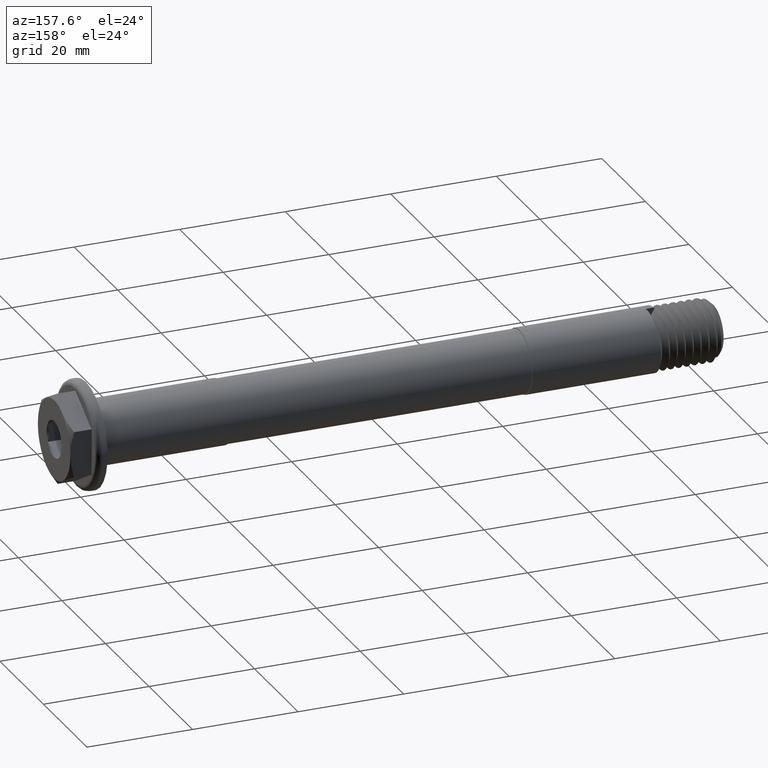
[diagram: clean part render]
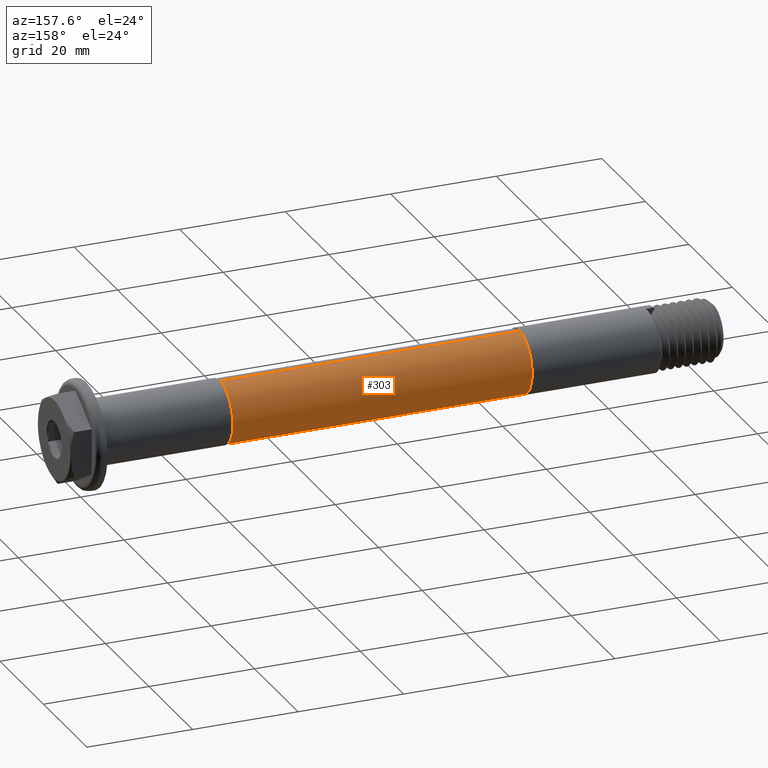
[diagram: same view with one face highlighted and labeled with its STEP entity id]
A machine part, auxiliary view. The second image highlights one B-rep face of the part: STEP entity #303.
In plain terms, the highlighted cylindrical surface (edge-blend (fillet) strip) has radius 5.842 mm, axis along (1, 0, 0).
Its self-contained STEP definition (entity closure, byte-faithful):
#22 = DIRECTION ( 'NONE',  ( 1.000000000000000000, 0.0000000000000000000, 0.0000000000000000000 ) ) ;
#46 = DIRECTION ( 'NONE',  ( 0.0000000000000000000, 0.0000000000000000000, -1.000000000000000000 ) ) ;
#75 = VECTOR ( 'NONE', #2176, 1000.000000000000000 ) ;
#205 = CARTESIAN_POINT ( 'NONE',  ( -5.540562748477140300, 7.154386600618837600E-016, 5.841999999999999600 ) ) ;
#301 = AXIS2_PLACEMENT_3D ( 'NONE', #1711, #22, #46 ) ;
#303 = ADVANCED_FACE ( 'NONE', ( #1860 ), #652, .T. ) ;
#495 = ORIENTED_EDGE ( 'NONE', *, *, #1855, .T. ) ;
#507 = ORIENTED_EDGE ( 'NONE', *, *, #1458, .T. ) ;
#544 = VERTEX_POINT ( 'NONE', #2092 ) ;
#554 = CARTESIAN_POINT ( 'NONE',  ( 36.82999999999999800, 7.154386600618837600E-016, 5.841999999999999600 ) ) ;
#555 = ORIENTED_EDGE ( 'NONE', *, *, #979, .T. ) ;
#577 = ORIENTED_EDGE ( 'NONE', *, *, #896, .F. ) ;
#629 = VERTEX_POINT ( 'NONE', #829 ) ;
#652 = CYLINDRICAL_SURFACE ( 'NONE', #301, 5.841999999999999600 ) ;
#797 = AXIS2_PLACEMENT_3D ( 'NONE', #2048, #2056, #2059 ) ;
#816 = VERTEX_POINT ( 'NONE', #1553 ) ;
#829 = CARTESIAN_POINT ( 'NONE',  ( 93.59999999999999400, 0.0000000000000000000, -5.841999999999999600 ) ) ;
#853 = CIRCLE ( 'NONE', #2221, 5.841999999999999600 ) ;
#896 = EDGE_CURVE ( 'NONE', #544, #629, #1243, .T. ) ;
#979 = EDGE_CURVE ( 'NONE', #816, #629, #1612, .T. ) ;
#1243 = LINE ( 'NONE', #1688, #1245 ) ;
#1245 = VECTOR ( 'NONE', #1714, 1000.000000000000000 ) ;
#1325 = EDGE_LOOP ( 'NONE', ( #495, #507, #555, #577 ) ) ;
#1458 = EDGE_CURVE ( 'NONE', #2080, #816, #2309, .T. ) ;
#1553 = CARTESIAN_POINT ( 'NONE',  ( 93.59999999999999400, 7.154386600618837600E-016, 5.841999999999999600 ) ) ;
#1612 = CIRCLE ( 'NONE', #797, 5.841999999999999600 ) ;
#1688 = CARTESIAN_POINT ( 'NONE',  ( -5.540562748477140300, 0.0000000000000000000, -5.841999999999999600 ) ) ;
#1711 = CARTESIAN_POINT ( 'NONE',  ( -5.540562748477140300, 0.0000000000000000000, 0.0000000000000000000 ) ) ;
#1714 = DIRECTION ( 'NONE',  ( 1.000000000000000000, 0.0000000000000000000, 0.0000000000000000000 ) ) ;
#1792 = DIRECTION ( 'NONE',  ( 0.0000000000000000000, 0.0000000000000000000, -1.000000000000000000 ) ) ;
#1810 = DIRECTION ( 'NONE',  ( 1.000000000000000000, 0.0000000000000000000, 0.0000000000000000000 ) ) ;
#1818 = CARTESIAN_POINT ( 'NONE',  ( 36.82999999999999800, 0.0000000000000000000, 0.0000000000000000000 ) ) ;
#1855 = EDGE_CURVE ( 'NONE', #544, #2080, #853, .T. ) ;
#1860 = FACE_OUTER_BOUND ( 'NONE', #1325, .T. ) ;
#2048 = CARTESIAN_POINT ( 'NONE',  ( 93.59999999999999400, 0.0000000000000000000, 0.0000000000000000000 ) ) ;
#2056 = DIRECTION ( 'NONE',  ( -1.000000000000000000, 0.0000000000000000000, 0.0000000000000000000 ) ) ;
#2059 = DIRECTION ( 'NONE',  ( 0.0000000000000000000, 0.0000000000000000000, 1.000000000000000000 ) ) ;
#2080 = VERTEX_POINT ( 'NONE', #554 ) ;
#2092 = CARTESIAN_POINT ( 'NONE',  ( 36.82999999999999800, 0.0000000000000000000, -5.841999999999999600 ) ) ;
#2176 = DIRECTION ( 'NONE',  ( 1.000000000000000000, 0.0000000000000000000, 0.0000000000000000000 ) ) ;
#2221 = AXIS2_PLACEMENT_3D ( 'NONE', #1818, #1810, #1792 ) ;
#2309 = LINE ( 'NONE', #205, #75 ) ;